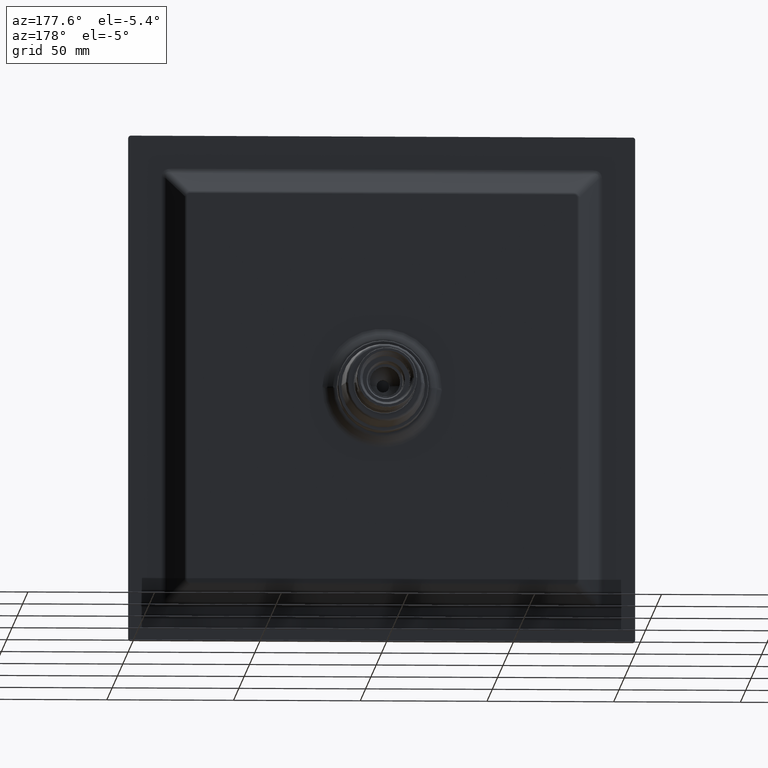
[diagram: clean part render]
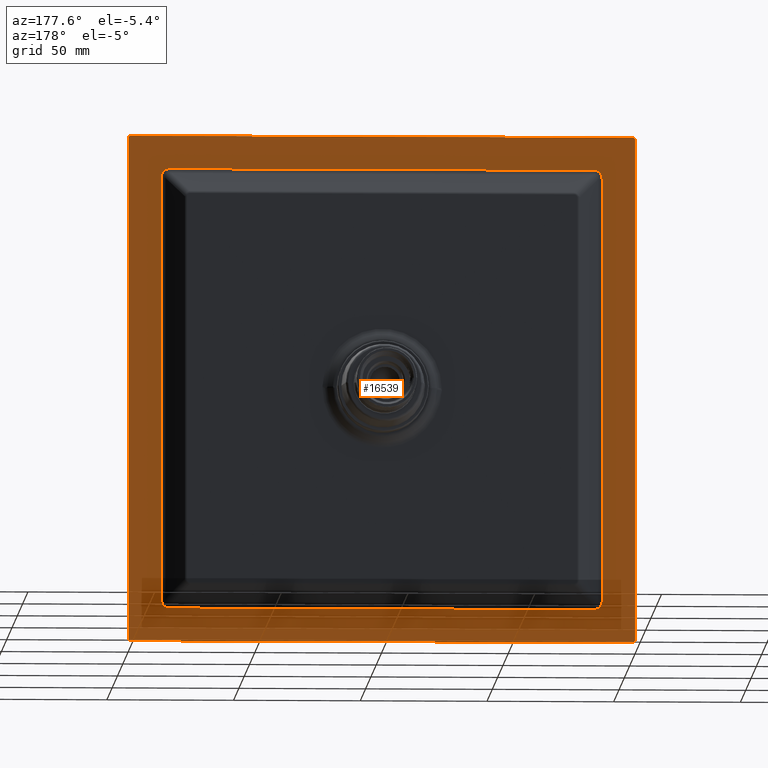
[diagram: same view with one face highlighted and labeled with its STEP entity id]
A machine part, auxiliary view. The second image highlights one B-rep face of the part: STEP entity #16539.
In plain terms, the highlighted planar face has unit normal (0, -1, 0).
Its self-contained STEP definition (entity closure, byte-faithful):
#14031=DIRECTION('',(3.783418553978E-13,-6.264283213390E-10,-1.E0));
#14032=VECTOR('',#14031,1.664698399059E2);
#14033=CARTESIAN_POINT('',(-8.699999999734E1,-6.020485967539E-6,
8.323491995200E1));
#14034=LINE('',#14033,#14032);
#14098=DIRECTION('',(-1.E0,-1.172990800230E-10,-8.733789662147E-13));
#14099=VECTOR('',#14098,1.664698375109E2);
#14100=CARTESIAN_POINT('',(8.323491875138E1,-1.339928481193E-6,
8.699999999249E1));
#14101=LINE('',#14100,#14099);
#14128=DIRECTION('',(3.041033660418E-11,-2.874297796197E-8,1.E0));
#14129=VECTOR('',#14128,1.664698387052E2);
#14130=CARTESIAN_POINT('',(8.699999999236E1,-1.339928482273E-6,
-8.323491875259E1));
#14131=LINE('',#14130,#14129);
#14158=DIRECTION('',(1.E0,-2.874297793467E-8,-3.041050733607E-11));
#14159=VECTOR('',#14158,1.664698387052E2);
#14160=CARTESIAN_POINT('',(-8.323491875259E1,-1.339928486265E-6,
-8.699999999236E1));
#14161=LINE('',#14160,#14159);
#14165=CARTESIAN_POINT('',(9.9E1,0.E0,-9.9E1));
#14166=DIRECTION('',(0.E0,-1.E0,0.E0));
#14167=DIRECTION('',(0.E0,0.E0,-1.E0));
#14168=AXIS2_PLACEMENT_3D('',#14165,#14166,#14167);
#14173=DIRECTION('',(0.E0,0.E0,1.E0));
#14174=VECTOR('',#14173,1.98E2);
#14175=CARTESIAN_POINT('',(1.E2,0.E0,-9.9E1));
#14176=LINE('',#14175,#14174);
#14180=CARTESIAN_POINT('',(9.9E1,0.E0,9.9E1));
#14181=DIRECTION('',(0.E0,-1.E0,0.E0));
#14182=DIRECTION('',(1.E0,0.E0,0.E0));
#14183=AXIS2_PLACEMENT_3D('',#14180,#14181,#14182);
#14188=DIRECTION('',(-1.E0,0.E0,0.E0));
#14189=VECTOR('',#14188,1.98E2);
#14190=CARTESIAN_POINT('',(9.9E1,0.E0,1.E2));
#14191=LINE('',#14190,#14189);
#14195=CARTESIAN_POINT('',(-9.9E1,0.E0,9.9E1));
#14196=DIRECTION('',(0.E0,-1.E0,0.E0));
#14197=DIRECTION('',(0.E0,0.E0,1.E0));
#14198=AXIS2_PLACEMENT_3D('',#14195,#14196,#14197);
#14203=DIRECTION('',(0.E0,0.E0,-1.E0));
#14204=VECTOR('',#14203,1.98E2);
#14205=CARTESIAN_POINT('',(-1.E2,0.E0,9.9E1));
#14206=LINE('',#14205,#14204);
#14210=CARTESIAN_POINT('',(-9.9E1,0.E0,-9.9E1));
#14211=DIRECTION('',(0.E0,-1.E0,0.E0));
#14212=DIRECTION('',(-1.E0,0.E0,0.E0));
#14213=AXIS2_PLACEMENT_3D('',#14210,#14211,#14212);
#14218=DIRECTION('',(1.E0,0.E0,0.E0));
#14219=VECTOR('',#14218,1.98E2);
#14220=CARTESIAN_POINT('',(-9.9E1,0.E0,-1.E2));
#14221=LINE('',#14220,#14219);
#14225=CARTESIAN_POINT('',(8.323491875138E1,-1.339928481193E-6,
8.699999999249E1));
#14226=CARTESIAN_POINT('',(8.348158036384E1,-2.740259769969E-6,
8.700013736884E1));
#14227=CARTESIAN_POINT('',(8.394551608911E1,1.271725782738E-6,
8.697328807050E1));
#14228=CARTESIAN_POINT('',(8.455302326869E1,-3.406505846285E-7,
8.686206164388E1));
#14229=CARTESIAN_POINT('',(8.507285973149E1,9.087655577647E-8,
8.668856762806E1));
#14230=CARTESIAN_POINT('',(8.551187428448E1,-2.285563847734E-8,
8.646520154658E1));
#14231=CARTESIAN_POINT('',(8.587991583377E1,5.459981329083E-10,
8.619761994530E1));
#14232=CARTESIAN_POINT('',(8.619189629201E1,2.067164594571E-8,
8.588708873556E1));
#14233=CARTESIAN_POINT('',(8.645830176856E1,-8.323258191575E-8,
8.552211756743E1));
#14234=CARTESIAN_POINT('',(8.668218127110E1,3.122586817173E-7,
8.508848089157E1));
#14235=CARTESIAN_POINT('',(8.685811584808E1,-1.165802144953E-6,
8.456870085105E1));
#14236=CARTESIAN_POINT('',(8.697226596188E1,4.350949898096E-6,
8.395704688924E1));
#14237=CARTESIAN_POINT('',(8.700013115340E1,-9.375014998922E-6,
8.348605873126E1));
#14238=CARTESIAN_POINT('',(8.699999999742E1,-6.124767387510E-6,
8.323491995265E1));
#14243=CARTESIAN_POINT('',(8.699999999236E1,-1.339928482273E-6,
-8.323491875259E1));
#14244=CARTESIAN_POINT('',(8.700013736870E1,-2.740259763154E-6,
-8.348158036323E1));
#14245=CARTESIAN_POINT('',(8.697328807057E1,1.271725779575E-6,
-8.394551608940E1));
#14246=CARTESIAN_POINT('',(8.686206164387E1,-3.406505837811E-7,
-8.455302326862E1));
#14247=CARTESIAN_POINT('',(8.668856762806E1,9.087655554944E-8,
-8.507285973152E1));
#14248=CARTESIAN_POINT('',(8.646520154658E1,-2.285563841668E-8,
-8.551187428448E1));
#14249=CARTESIAN_POINT('',(8.619761994530E1,5.459981172768E-10,
-8.587991583378E1));
#14250=CARTESIAN_POINT('',(8.588708873556E1,2.067164594757E-8,
-8.619189629201E1));
#14251=CARTESIAN_POINT('',(8.552211756743E1,-8.323258190756E-8,
-8.645830176856E1));
#14252=CARTESIAN_POINT('',(8.508848089157E1,3.122586816827E-7,
-8.668218127110E1));
#14253=CARTESIAN_POINT('',(8.456870085105E1,-1.165802144823E-6,
-8.685811584808E1));
#14254=CARTESIAN_POINT('',(8.395704688924E1,4.350949897610E-6,
-8.697226596188E1));
#14255=CARTESIAN_POINT('',(8.348605873126E1,-9.375014997874E-6,
-8.700013115340E1));
#14256=CARTESIAN_POINT('',(8.323491995265E1,-6.124767386958E-6,
-8.699999999742E1));
#14261=CARTESIAN_POINT('',(-8.323491875259E1,-1.339928486265E-6,
-8.699999999236E1));
#14262=CARTESIAN_POINT('',(-8.348158036323E1,-2.740259771722E-6,
-8.700013736870E1));
#14263=CARTESIAN_POINT('',(-8.394551608940E1,1.271725783551E-6,
-8.697328807057E1));
#14264=CARTESIAN_POINT('',(-8.455302326862E1,-3.406505848468E-7,
-8.686206164387E1));
#14265=CARTESIAN_POINT('',(-8.507285973152E1,9.087655583593E-8,
-8.668856762806E1));
#14266=CARTESIAN_POINT('',(-8.551187428448E1,-2.285563849696E-8,
-8.646520154658E1));
#14267=CARTESIAN_POINT('',(-8.587991583377E1,5.459981519084E-10,
-8.619761994530E1));
#14268=CARTESIAN_POINT('',(-8.619189629201E1,2.067164588933E-8,
-8.588708873557E1));
#14269=CARTESIAN_POINT('',(-8.645830176856E1,-8.323258170922E-8,
-8.552211756743E1));
#14270=CARTESIAN_POINT('',(-8.668218127110E1,3.122586809475E-7,
-8.508848089159E1));
#14271=CARTESIAN_POINT('',(-8.685811584807E1,-1.165802142081E-6,
-8.456870085097E1));
#14272=CARTESIAN_POINT('',(-8.697226596194E1,4.350949887376E-6,
-8.395704688953E1));
#14273=CARTESIAN_POINT('',(-8.700013115326E1,-9.375014975824E-6,
-8.348605873064E1));
#14274=CARTESIAN_POINT('',(-8.699999999728E1,-6.124767389904E-6,
-8.323491995389E1));
#14279=CARTESIAN_POINT('',(-8.699999999734E1,-6.020485967539E-6,
8.323491995200E1));
#14280=CARTESIAN_POINT('',(-8.700012690185E1,-9.067155674854E-6,
8.347865481061E1));
#14281=CARTESIAN_POINT('',(-8.697393566874E1,4.208071564590E-6,
8.393830341502E1));
#14282=CARTESIAN_POINT('',(-8.686401097484E1,-1.127516963784E-6,
8.454490922733E1));
#14283=CARTESIAN_POINT('',(-8.669133714593E1,3.019962905452E-7,
8.506688533120E1));
#14284=CARTESIAN_POINT('',(-8.646748242217E1,-8.046819839698E-8,
8.550772605693E1));
#14285=CARTESIAN_POINT('',(-8.620075663464E1,1.987650304274E-8,
8.587671815431E1));
#14286=CARTESIAN_POINT('',(-8.589061856256E1,9.621862260252E-10,
8.618837711854E1));
#14287=CARTESIAN_POINT('',(-8.552669769446E1,-2.372524794684E-8,
8.645582368852E1));
#14288=CARTESIAN_POINT('',(-8.509271497840E1,9.393880556133E-8,
8.668024632215E1));
#14289=CARTESIAN_POINT('',(-8.457197145108E1,-3.520299742985E-7,
8.685750062850E1));
#14290=CARTESIAN_POINT('',(-8.395830413591E1,1.314181091633E-6,
8.697219875332E1));
#14291=CARTESIAN_POINT('',(-8.348646078602E1,-2.831735897610E-6,
8.700014019649E1));
#14292=CARTESIAN_POINT('',(-8.323491875957E1,-1.359455239985E-6,
8.699999999235E1));
#15501=CARTESIAN_POINT('',(-8.699999999943E1,0.E0,-8.323491934434E1));
#15502=VERTEX_POINT('',#15501);
#15503=VERTEX_POINT('',#14261);
#15504=CARTESIAN_POINT('',(-8.699999999943E1,0.E0,8.323491934149E1));
#15505=VERTEX_POINT('',#15504);
#15506=CARTESIAN_POINT('',(-8.323492048850E1,0.E0,8.699999999984E1));
#15507=VERTEX_POINT('',#15506);
#15508=CARTESIAN_POINT('',(8.323492048601E1,0.E0,8.699999999984E1));
#15509=VERTEX_POINT('',#15508);
#15510=CARTESIAN_POINT('',(8.699999999964E1,0.E0,8.323491934434E1));
#15511=VERTEX_POINT('',#15510);
#15512=CARTESIAN_POINT('',(8.699999999964E1,0.E0,-8.323492048601E1));
#15513=VERTEX_POINT('',#15512);
#15514=CARTESIAN_POINT('',(8.323491934434E1,0.E0,-8.699999999964E1));
#15515=VERTEX_POINT('',#15514);
#15516=CARTESIAN_POINT('',(9.9E1,0.E0,-1.E2));
#15517=CARTESIAN_POINT('',(1.E2,0.E0,-9.9E1));
#15518=VERTEX_POINT('',#15516);
#15519=VERTEX_POINT('',#15517);
#15520=CARTESIAN_POINT('',(1.E2,0.E0,9.9E1));
#15521=VERTEX_POINT('',#15520);
#15522=CARTESIAN_POINT('',(9.9E1,0.E0,1.E2));
#15523=VERTEX_POINT('',#15522);
#15524=CARTESIAN_POINT('',(-9.9E1,0.E0,1.E2));
#15525=VERTEX_POINT('',#15524);
#15526=CARTESIAN_POINT('',(-1.E2,0.E0,9.9E1));
#15527=VERTEX_POINT('',#15526);
#15528=CARTESIAN_POINT('',(-1.E2,0.E0,-9.9E1));
#15529=VERTEX_POINT('',#15528);
#15530=CARTESIAN_POINT('',(-9.9E1,0.E0,-1.E2));
#15531=VERTEX_POINT('',#15530);
#16506=CARTESIAN_POINT('',(-1.E2,0.E0,1.E2));
#16507=DIRECTION('',(0.E0,-1.E0,0.E0));
#16508=DIRECTION('',(0.E0,0.E0,-1.E0));
#16509=AXIS2_PLACEMENT_3D('',#16506,#16507,#16508);
#16510=PLANE('',#16509);
#16512=ORIENTED_EDGE('',*,*,#16511,.T.);
#16514=ORIENTED_EDGE('',*,*,#16513,.T.);
#16516=ORIENTED_EDGE('',*,*,#16515,.T.);
#16518=ORIENTED_EDGE('',*,*,#16517,.T.);
#16520=ORIENTED_EDGE('',*,*,#16519,.T.);
#16522=ORIENTED_EDGE('',*,*,#16521,.T.);
#16524=ORIENTED_EDGE('',*,*,#16523,.T.);
#16526=ORIENTED_EDGE('',*,*,#16525,.T.);
#16527=EDGE_LOOP('',(#16512,#16514,#16516,#16518,#16520,#16522,#16524,#16526));
#16528=FACE_OUTER_BOUND('',#16527,.F.);
#16529=ORIENTED_EDGE('',*,*,#16358,.F.);
#16530=ORIENTED_EDGE('',*,*,#16414,.T.);
#16531=ORIENTED_EDGE('',*,*,#16430,.F.);
#16532=ORIENTED_EDGE('',*,*,#16486,.T.);
#16533=ORIENTED_EDGE('',*,*,#16501,.F.);
#16534=ORIENTED_EDGE('',*,*,#16269,.T.);
#16535=ORIENTED_EDGE('',*,*,#16284,.F.);
#16536=ORIENTED_EDGE('',*,*,#16342,.T.);
#16537=EDGE_LOOP('',(#16529,#16530,#16531,#16532,#16533,#16534,#16535,#16536));
#16538=FACE_BOUND('',#16537,.F.);
#16539=ADVANCED_FACE('',(#16528,#16538),#16510,.F.);
#14169=CIRCLE('',#14168,1.E0);
#14184=CIRCLE('',#14183,1.E0);
#14199=CIRCLE('',#14198,1.E0);
#14214=CIRCLE('',#14213,1.E0);
#14239=B_SPLINE_CURVE_WITH_KNOTS('',3,(#14225,#14226,#14227,#14228,#14229,
#14230,#14231,#14232,#14233,#14234,#14235,#14236,#14237,#14238),.UNSPECIFIED.,
.F.,.F.,(4,1,1,1,1,1,1,1,1,1,1,4),(0.E0,9.090909090909E-2,1.818181818182E-1,
2.727272727273E-1,3.636363636364E-1,4.545454545455E-1,5.454545454545E-1,
6.363636363636E-1,7.272727272727E-1,8.181818181818E-1,9.090909090909E-1,1.E0),
.UNSPECIFIED.);
#14257=B_SPLINE_CURVE_WITH_KNOTS('',3,(#14243,#14244,#14245,#14246,#14247,
#14248,#14249,#14250,#14251,#14252,#14253,#14254,#14255,#14256),.UNSPECIFIED.,
.F.,.F.,(4,1,1,1,1,1,1,1,1,1,1,4),(0.E0,9.090909090909E-2,1.818181818182E-1,
2.727272727273E-1,3.636363636364E-1,4.545454545455E-1,5.454545454545E-1,
6.363636363636E-1,7.272727272727E-1,8.181818181818E-1,9.090909090909E-1,1.E0),
.UNSPECIFIED.);
#14275=B_SPLINE_CURVE_WITH_KNOTS('',3,(#14261,#14262,#14263,#14264,#14265,
#14266,#14267,#14268,#14269,#14270,#14271,#14272,#14273,#14274),.UNSPECIFIED.,
.F.,.F.,(4,1,1,1,1,1,1,1,1,1,1,4),(0.E0,9.090909090909E-2,1.818181818182E-1,
2.727272727273E-1,3.636363636364E-1,4.545454545455E-1,5.454545454545E-1,
6.363636363636E-1,7.272727272727E-1,8.181818181818E-1,9.090909090909E-1,1.E0),
.UNSPECIFIED.);
#14293=B_SPLINE_CURVE_WITH_KNOTS('',3,(#14279,#14280,#14281,#14282,#14283,
#14284,#14285,#14286,#14287,#14288,#14289,#14290,#14291,#14292),.UNSPECIFIED.,
.F.,.F.,(4,1,1,1,1,1,1,1,1,1,1,4),(0.E0,9.090909090909E-2,1.818181818182E-1,
2.727272727273E-1,3.636363636364E-1,4.545454545455E-1,5.454545454545E-1,
6.363636363636E-1,7.272727272727E-1,8.181818181818E-1,9.090909090909E-1,1.E0),
.UNSPECIFIED.);
#16269=EDGE_CURVE('',#15503,#15502,#14275,.T.);
#16284=EDGE_CURVE('',#15505,#15502,#14034,.T.);
#16342=EDGE_CURVE('',#15505,#15507,#14293,.T.);
#16358=EDGE_CURVE('',#15509,#15507,#14101,.T.);
#16414=EDGE_CURVE('',#15509,#15511,#14239,.T.);
#16430=EDGE_CURVE('',#15513,#15511,#14131,.T.);
#16486=EDGE_CURVE('',#15513,#15515,#14257,.T.);
#16501=EDGE_CURVE('',#15503,#15515,#14161,.T.);
#16511=EDGE_CURVE('',#15518,#15519,#14169,.T.);
#16513=EDGE_CURVE('',#15519,#15521,#14176,.T.);
#16515=EDGE_CURVE('',#15521,#15523,#14184,.T.);
#16517=EDGE_CURVE('',#15523,#15525,#14191,.T.);
#16519=EDGE_CURVE('',#15525,#15527,#14199,.T.);
#16521=EDGE_CURVE('',#15527,#15529,#14206,.T.);
#16523=EDGE_CURVE('',#15529,#15531,#14214,.T.);
#16525=EDGE_CURVE('',#15531,#15518,#14221,.T.);